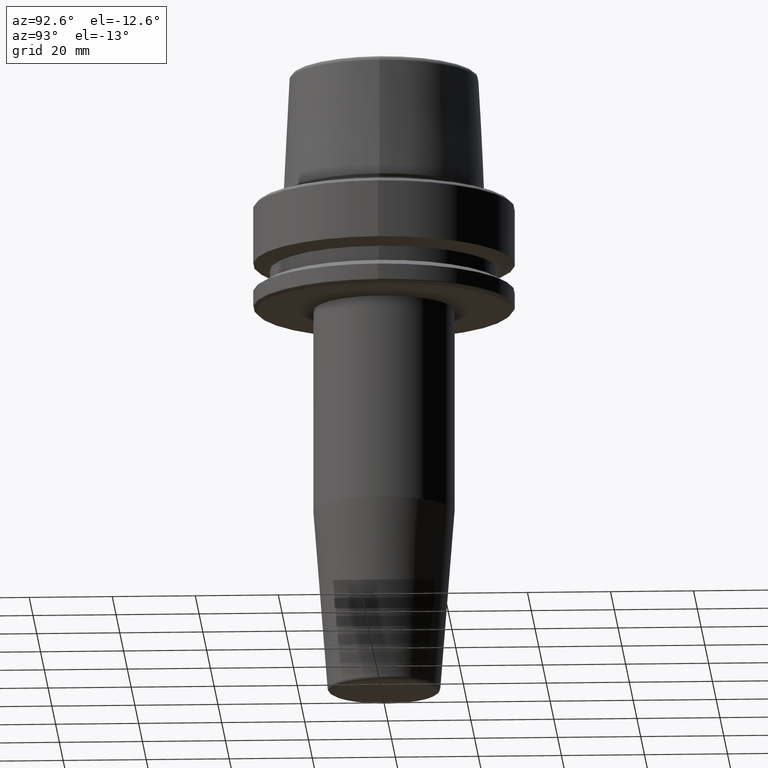
[diagram: clean part render]
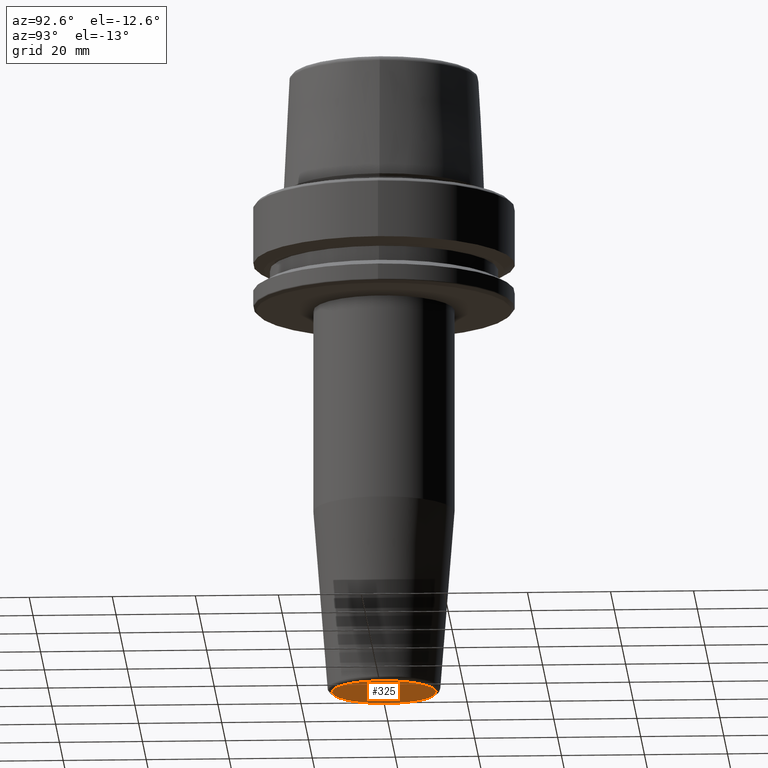
[diagram: same view with one face highlighted and labeled with its STEP entity id]
A machine part, auxiliary view. The second image highlights one B-rep face of the part: STEP entity #325.
In plain terms, the highlighted planar face has unit normal (0, -0, 1).
Its self-contained STEP definition (entity closure, byte-faithful):
#56 = EDGE_CURVE ( 'NONE', #359, #1065, #382, .T. ) ;
#88 = CARTESIAN_POINT ( 'NONE',  ( 0.0000000000000000000, 3.061616997868382300E-015, -120.0000000000000000 ) ) ;
#91 = DIRECTION ( 'NONE',  ( 0.0000000000000000000, -3.257039359434450100E-017, 1.000000000000000000 ) ) ;
#170 = AXIS2_PLACEMENT_3D ( 'NONE', #1015, #499, #320 ) ;
#180 = FACE_OUTER_BOUND ( 'NONE', #560, .T. ) ;
#182 = DIRECTION ( 'NONE',  ( 0.0000000000000000000, 1.000000000000000000, 0.0000000000000000000 ) ) ;
#277 = CARTESIAN_POINT ( 'NONE',  ( 1.601111574260318500E-015, -12.57560950834178300, -120.0000000000000000 ) ) ;
#278 = CIRCLE ( 'NONE', #496, 12.57560950834178600 ) ;
#279 = PLANE ( 'NONE',  #795 ) ;
#320 = DIRECTION ( 'NONE',  ( 0.0000000000000000000, 1.000000000000000000, 0.0000000000000000000 ) ) ;
#325 = ADVANCED_FACE ( 'NONE', ( #180 ), #279, .F. ) ;
#359 = VERTEX_POINT ( 'NONE', #996 ) ;
#382 = CIRCLE ( 'NONE', #170, 12.57560950834178600 ) ;
#435 = CARTESIAN_POINT ( 'NONE',  ( 0.0000000000000000000, 6.670295305805468500E-033, -120.0000000000000000 ) ) ;
#450 = ORIENTED_EDGE ( 'NONE', *, *, #56, .T. ) ;
#484 = ORIENTED_EDGE ( 'NONE', *, *, #1054, .T. ) ;
#496 = AXIS2_PLACEMENT_3D ( 'NONE', #88, #750, #182 ) ;
#499 = DIRECTION ( 'NONE',  ( -0.0000000000000000000, 3.257039359434450100E-017, -1.000000000000000000 ) ) ;
#560 = EDGE_LOOP ( 'NONE', ( #450, #484 ) ) ;
#750 = DIRECTION ( 'NONE',  ( -0.0000000000000000000, 3.257039359434450100E-017, -1.000000000000000000 ) ) ;
#788 = DIRECTION ( 'NONE',  ( 0.0000000000000000000, -1.000000000000000000, -3.257039359434450100E-017 ) ) ;
#795 = AXIS2_PLACEMENT_3D ( 'NONE', #435, #91, #788 ) ;
#996 = CARTESIAN_POINT ( 'NONE',  ( 0.0000000000000000000, 12.57560950834179000, -120.0000000000000000 ) ) ;
#1015 = CARTESIAN_POINT ( 'NONE',  ( 0.0000000000000000000, 3.061616997868382300E-015, -120.0000000000000000 ) ) ;
#1054 = EDGE_CURVE ( 'NONE', #1065, #359, #278, .T. ) ;
#1065 = VERTEX_POINT ( 'NONE', #277 ) ;